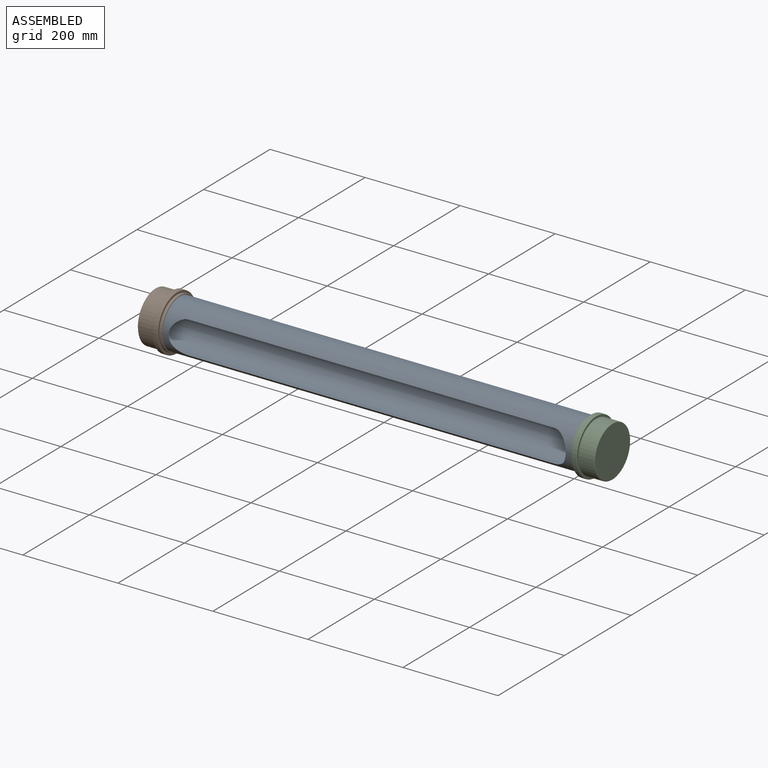
[diagram: assembled view]
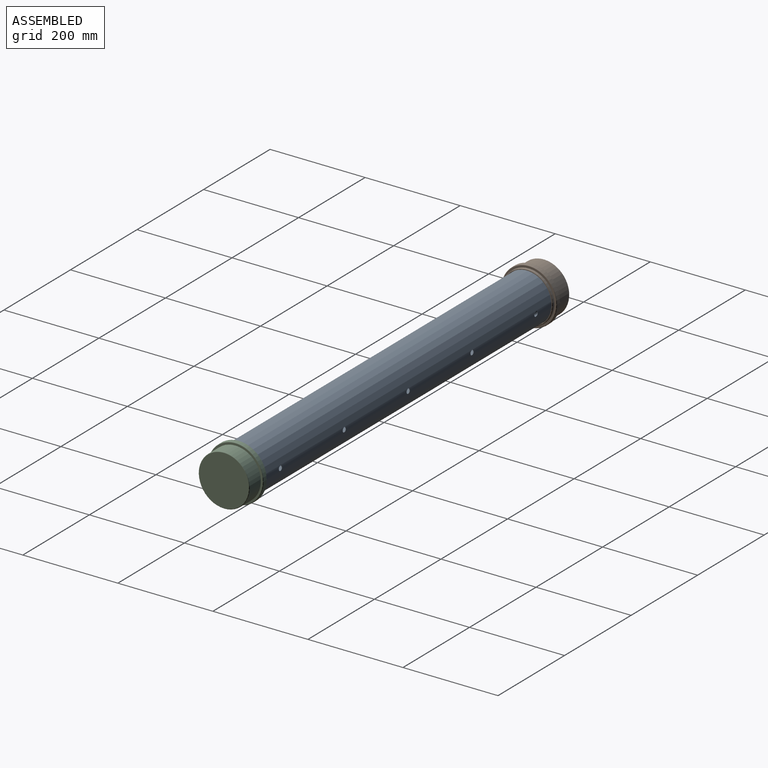
[diagram: assembled view, second angle]
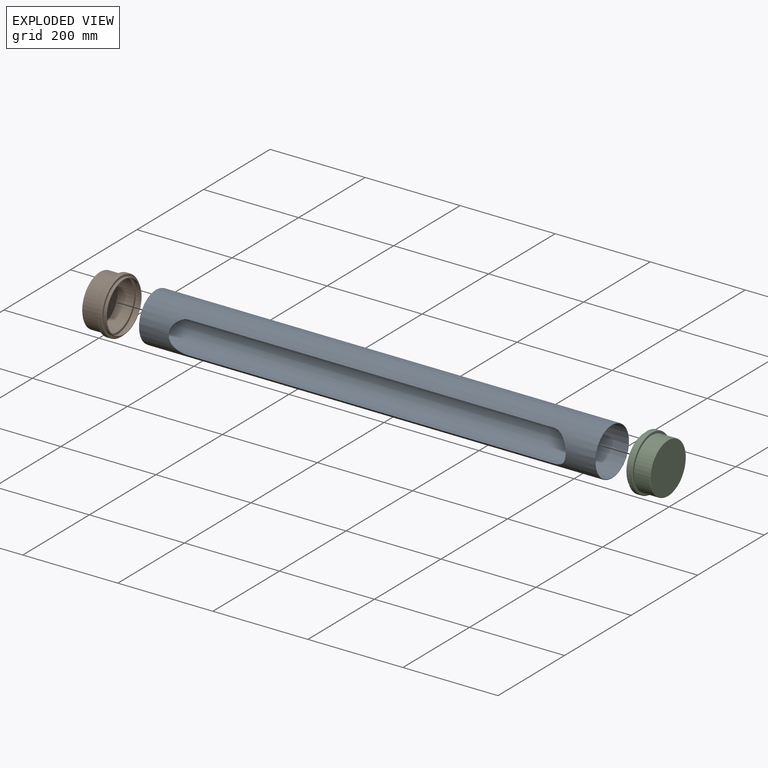
[diagram: exploded view]
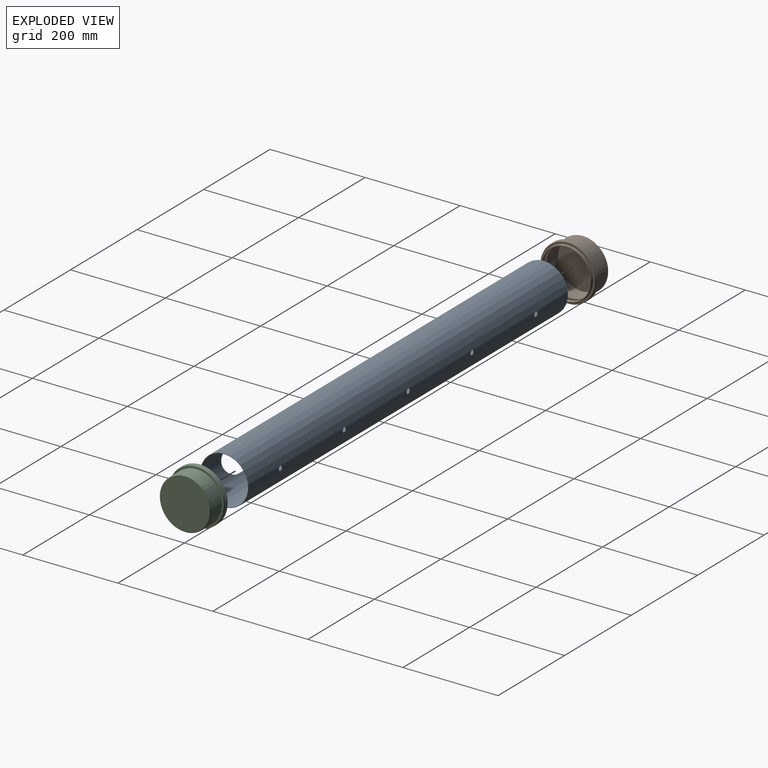
[diagram: exploded view, second angle]
ASSEMBLY  parts=3 mates=2
PART A: 13 faces, bbox 960x102x102 mm
  f0: cylinder r=51mm len=960mm, axis (-1,0,0), area 246188.3mm2, adj f2,f3,f4,f5,f6,f7,f8,f9
  f1: cylinder r=50mm len=960mm, axis (1,0,0), area 239881.7mm2, adj f2,f3,f4,f5,f6,f7,f8,f9
  f2: plane 102x102mm, normal (1,0,0), area 317.3mm2, adj f0,f1
  f3: plane 102x102mm, normal (-1,0,0), area 317.3mm2, adj f0,f1
  f4: cylinder r=34mm len=68mm, axis (0,1,0), area 123.7mm2, adj f0,f1,f5,f7
  f5: plane 768x1.35mm, normal (0,0,1), area 1038.8mm2, adj f0,f1,f4,f6
  f6: cylinder r=34mm len=68mm, axis (0,1,0), area 123.7mm2, adj f0,f1,f5,f7
  f7: plane 768x1.35mm, normal (0,0,-1), area 1038.8mm2, adj f0,f1,f4,f6
  f8: cylinder r=5mm len=10mm, axis (0,-1,0), area 31.5mm2, adj f0,f1
  f9: cylinder r=5mm len=10mm, axis (0,-1,0), area 31.5mm2, adj f0,f1
  f10: cylinder r=5mm len=10mm, axis (0,-1,0), area 31.5mm2, adj f0,f1
  f11: cylinder r=5mm len=10mm, axis (0,-1,0), area 31.5mm2, adj f0,f1
  f12: cylinder r=5mm len=10mm, axis (0,-1,0), area 31.5mm2, adj f0,f1
PART B: 17 faces, bbox 51x126.6x126.6 mm
  f0: cylinder r=58.5mm len=117mm, axis (-1,0,0), area 3308.1mm2, adj f14,f15
  f1: plane 115x115mm, normal (1,0,0), area 1394.9mm2, adj f5,f15
  f2: plane 115x115mm, normal (-1,0,0), area 1394.9mm2, adj f3,f14
  f3: cylinder r=53.5mm len=107mm, axis (1,0,0), area 11261mm2, adj f2,f13
  f4: plane 105x105mm, normal (-1,0,0), area 8659mm2, adj f13
  f5: cylinder r=53.5mm len=107mm, axis (-1,0,0), area 1512.7mm2, adj f1,f16
  f6: plane 105x105mm, normal (1,0,0), area 326.7mm2, adj f7,f16
  f7: cylinder r=51.5mm len=103mm, axis (1,0,0), area 2426.9mm2, adj f6,f9
  f8: plane 113x113mm, normal (1,0,0), area 1696.5mm2, adj f10,f12
  f9: plane 113x113mm, normal (-1,0,0), area 1696.5mm2, adj f7,f10
  f10: cylinder r=56.5mm len=113mm, axis (1,0,0), area 2485mm2, adj f8,f9
  f11: plane 103x103mm, normal (1,0,0), area 8332.3mm2, adj f12
  f12: cylinder r=51.5mm len=103mm, axis (1,0,0), area 11163.6mm2, adj f8,f11
  f13: torus R=52.5mm, axis (1,0,0), area 524.4mm2, adj f3,f4
  f14: torus R=57.5mm, axis (1,0,0), area 573.8mm2, adj f0,f2
  f15: torus R=57.5mm, axis (1,0,0), area 573.8mm2, adj f0,f1
  f16: torus R=52.5mm, axis (1,0,0), area 524.4mm2, adj f5,f6
PART C: 17 faces, bbox 51x126.6x126.6 mm
  f0: cylinder r=51.5mm len=103mm, axis (-1,0,0), area 2426.9mm2, adj f7,f9
  f1: cylinder r=58.5mm len=117mm, axis (-1,0,0), area 3308.1mm2, adj f14,f15
  f2: plane 115x115mm, normal (1,0,0), area 1394.9mm2, adj f4,f15
  f3: plane 115x115mm, normal (-1,0,0), area 1394.9mm2, adj f6,f14
  f4: cylinder r=53.5mm len=107mm, axis (-1,0,0), area 11261mm2, adj f2,f13
  f5: plane 105x105mm, normal (1,0,0), area 8659mm2, adj f13
  f6: cylinder r=53.5mm len=107mm, axis (1,0,0), area 1512.7mm2, adj f3,f16
  f7: plane 105x105mm, normal (-1,0,0), area 326.7mm2, adj f0,f16
  f8: cylinder r=56.5mm len=113mm, axis (1,0,0), area 2485mm2, adj f9,f10
  f9: plane 113x113mm, normal (1,0,0), area 1696.5mm2, adj f0,f8
  f10: plane 113x113mm, normal (-1,0,0), area 1696.5mm2, adj f8,f12
  f11: plane 103x103mm, normal (-1,0,0), area 8332.3mm2, adj f12
  f12: cylinder r=51.5mm len=103mm, axis (-1,0,0), area 11163.6mm2, adj f10,f11
  f13: torus R=52.5mm, axis (1,0,0), area 524.4mm2, adj f4,f5
  f14: torus R=57.5mm, axis (1,0,0), area 573.8mm2, adj f1,f3
  f15: torus R=57.5mm, axis (1,0,0), area 573.8mm2, adj f1,f2
  f16: torus R=52.5mm, axis (1,0,0), area 524.4mm2, adj f6,f7
PLACE A at identity fixed
PLACE B t=(-441,0,0)mm
PLACE C t=(441,0,0)mm
MATE fastened C.f4 <-> A.f0  axis (-1,0,0) through (480,0,0)mm
MATE fastened B.f3 <-> A.f0  axis (1,0,0) through (-480,0,0)mm
